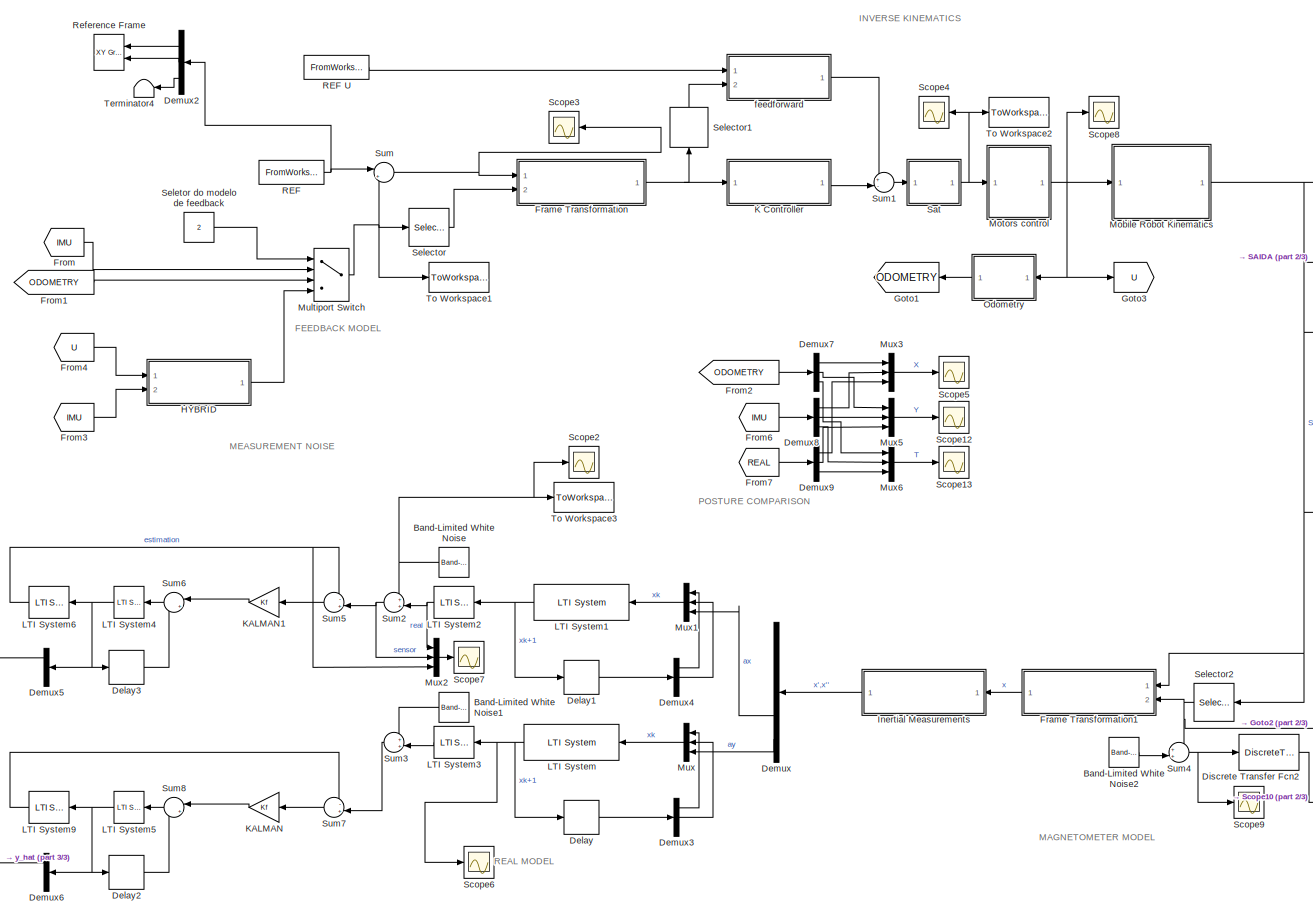
[diagram: root canvas - part 1/3, center side, full height]
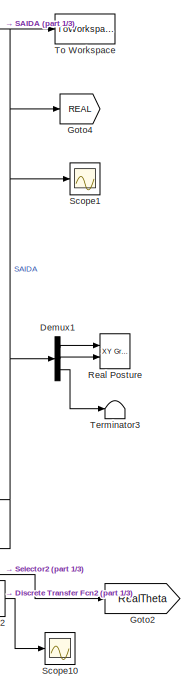
[diagram: root canvas - part 2/3, middle right region]
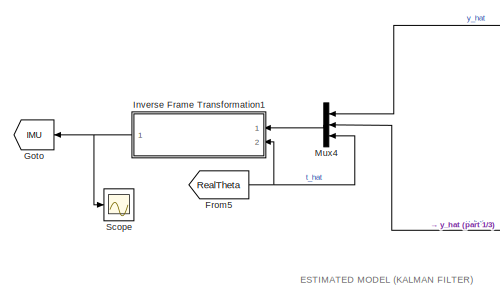
[diagram: root canvas - part 3/3, bottom left region]
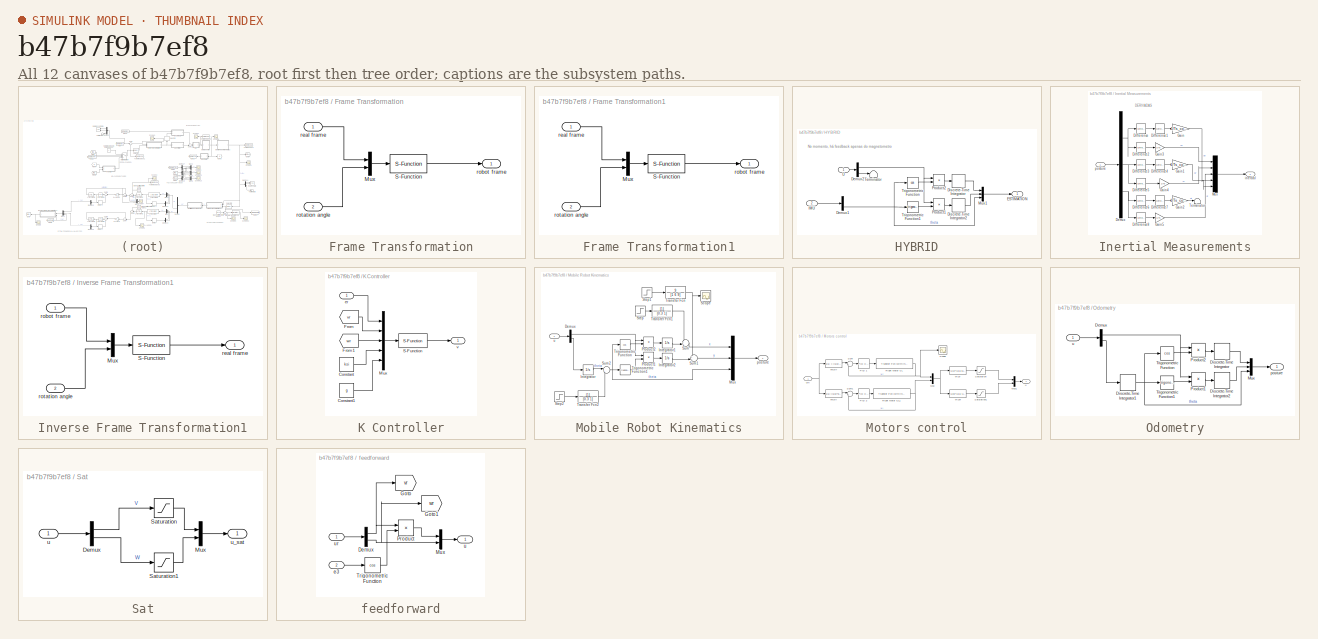
[diagram: thumbnail index - all 12 canvases of the model, root first then tree order]
MODEL slx_b47b7f9b7ef8
KIND model
CONFIG AbsTol = auto
CONFIG EnableMultiTasking = off
CONFIG FixedStep = 0.001
CONFIG MaxStep = auto
CONFIG MinStep = auto
CONFIG RelTol = 1e-3
CONFIG SampleTimeConstraint = Unconstrained
CONFIG Solver = VariableStepAuto
CONFIG SolverName = VariableStepAuto
CONFIG StartTime = 0.0
CONFIG StopTime = Tsim
BLOCK [Reference] Band-Limited White Noise  REF=simulink/Sources/Band-Limited
White Noise
  Ports = [0, 1]
  SourceBlock = simulink/Sources/Band-Limited\nWhite Noise
  SourceProductBaseCode = SL
  SourceProductName = Simulink
  SourceType = Band-Limited White Noise.
BLOCK [Reference] Band-Limited White Noise1  REF=simulink/Sources/Band-Limited
White Noise
  Ports = [0, 1]
  SourceBlock = simulink/Sources/Band-Limited\nWhite Noise
  SourceProductBaseCode = SL
  SourceProductName = Simulink
  SourceType = Band-Limited White Noise.
BLOCK [Reference] Band-Limited White Noise2  REF=simulink/Sources/Band-Limited
White Noise
  Ports = [0, 1]
  SourceBlock = simulink/Sources/Band-Limited\nWhite Noise
  SourceProductBaseCode = SL
  SourceProductName = Simulink
  SourceType = Band-Limited White Noise.
BLOCK [Delay] Delay
  DelayLength = 1
  InputPortMap = u0
  Ports = [1, 1]
BLOCK [Delay] Delay1
  DelayLength = 1
  InputPortMap = u0
  Ports = [1, 1]
BLOCK [Delay] Delay2
  DelayLength = 1
  InputPortMap = u0
  Ports = [1, 1]
BLOCK [Delay] Delay3
  DelayLength = 1
  InputPortMap = u0
  Ports = [1, 1]
BLOCK [Demux] Demux
  DisplayOption = bar
  Outputs = 5
  Ports = [1, 5]
BLOCK [Demux] Demux1
  DisplayOption = bar
  Outputs = 3
  Ports = [1, 3]
BLOCK [Demux] Demux2
  DisplayOption = bar
  Outputs = 3
  Ports = [1, 3]
BLOCK [Demux] Demux3
  DisplayOption = bar
  Outputs = 3
  Ports = [1, 3]
BLOCK [Demux] Demux4
  DisplayOption = bar
  Outputs = 3
  Ports = [1, 3]
BLOCK [Demux] Demux5
  DisplayOption = bar
  Outputs = 3
  Ports = [1, 3]
BLOCK [Demux] Demux6
  DisplayOption = bar
  Outputs = 3
  Ports = [1, 3]
BLOCK [Demux] Demux7
  DisplayOption = bar
  Outputs = 3
  Ports = [1, 3]
BLOCK [Demux] Demux8
  DisplayOption = bar
  Outputs = 3
  Ports = [1, 3]
BLOCK [Demux] Demux9
  DisplayOption = bar
  Outputs = 3
  Ports = [1, 3]
BLOCK [DiscreteTransferFcn] Discrete Transfer Fcn2
  Denominator = F_M.den{1}
  InputPortMap = u0
  Numerator = F_M.num{1}
  Ports = [1, 1]
BLOCK [SubSystem] Frame Transformation
  Ports = [2, 1]
  RequestExecContextInheritance = off
  Variant = off
BLOCK [Mux] Frame Transformation/Mux
  DisplayOption = bar
  Inputs = 2
  Ports = [2, 1]
BLOCK [S-Function] Frame Transformation/S-Function
  EnableBusSupport = off
  FunctionName = Real2Robot
  Parameters = Ts
  Ports = [1, 1]
  SFcnIsStateOwnerBlock = off
  SFunctionDeploymentMode = off
BLOCK [Inport] Frame Transformation/real frame
  IconDisplay = Port number
BLOCK [Outport] Frame Transformation/robot frame
  IconDisplay = Port number
BLOCK [Inport] Frame Transformation/rotation angle
  IconDisplay = Port number
  Port = 2
BLOCK [SubSystem] Frame Transformation1
  Ports = [2, 1]
  RequestExecContextInheritance = off
  Variant = off
BLOCK [Mux] Frame Transformation1/Mux
  DisplayOption = bar
  Inputs = 2
  Ports = [2, 1]
BLOCK [S-Function] Frame Transformation1/S-Function
  EnableBusSupport = off
  FunctionName = Real2Robot
  Parameters = Ts_compute
  Ports = [1, 1]
  SFcnIsStateOwnerBlock = off
  SFunctionDeploymentMode = off
BLOCK [Inport] Frame Transformation1/real frame
  IconDisplay = Port number
BLOCK [Outport] Frame Transformation1/robot frame
  IconDisplay = Port number
BLOCK [Inport] Frame Transformation1/rotation angle
  IconDisplay = Port number
  Port = 2
BLOCK [From] From
  GotoTag = IMU
BLOCK [From] From1
  GotoTag = ODOMETRY
BLOCK [From] From2
  GotoTag = ODOMETRY
BLOCK [From] From3
  GotoTag = IMU
BLOCK [From] From4
  GotoTag = U
BLOCK [From] From5
  GotoTag = RealTheta
BLOCK [From] From6
  GotoTag = IMU
BLOCK [From] From7
  GotoTag = REAL
BLOCK [Goto] Goto
  GotoTag = IMU
BLOCK [Goto] Goto1
  GotoTag = ODOMETRY
BLOCK [Goto] Goto2
  GotoTag = RealTheta
BLOCK [Goto] Goto3
  GotoTag = U
BLOCK [Goto] Goto4
  GotoTag = REAL
BLOCK [SubSystem] HYBRID
  Ports = [2, 1]
  RequestExecContextInheritance = off
  Variant = off
BLOCK [Demux] HYBRID/Demux1
  DisplayOption = bar
  Outputs = 3
  Ports = [1, 3]
BLOCK [Demux] HYBRID/Demux2
  DisplayOption = bar
  Outputs = 2
  Ports = [1, 2]
BLOCK [DiscreteIntegrator] HYBRID/Discrete-Time Integrator
  ICPrevOutput = DiscIntNeverNeededParam
  ICPrevScaledInput = DiscIntNeverNeededParam
  InitialConditionSetting = State (most efficient)
  Ports = [1, 1]
  SampleTime = Ts
BLOCK [DiscreteIntegrator] HYBRID/Discrete-Time Integrator2
  ICPrevOutput = DiscIntNeverNeededParam
  ICPrevScaledInput = DiscIntNeverNeededParam
  InitialConditionSetting = State (most efficient)
  Ports = [1, 1]
  SampleTime = Ts
BLOCK [Outport] HYBRID/ESTIMATION
  IconDisplay = Port number
BLOCK [Inport] HYBRID/IMU
  IconDisplay = Port number
  Port = 2
BLOCK [Mux] HYBRID/Mux1
  DisplayOption = bar
  Inputs = 3
  Ports = [3, 1]
BLOCK [Product] HYBRID/Product1
  InputSameDT = off
  OutDataTypeStr = Inherit: Inherit via internal rule
  Ports = [2, 1]
  RndMeth = Floor
  SaturateOnIntegerOverflow = off
BLOCK [Product] HYBRID/Product2
  InputSameDT = off
  OutDataTypeStr = Inherit: Inherit via internal rule
  Ports = [2, 1]
  RndMeth = Floor
  SaturateOnIntegerOverflow = off
BLOCK [Terminator] HYBRID/Terminator
BLOCK [Trigonometry] HYBRID/Trigonometric Function
  Operator = cos
  Ports = [1, 1]
BLOCK [Trigonometry] HYBRID/Trigonometric Function1
  Ports = [1, 1]
BLOCK [Inport] HYBRID/U
  IconDisplay = Port number
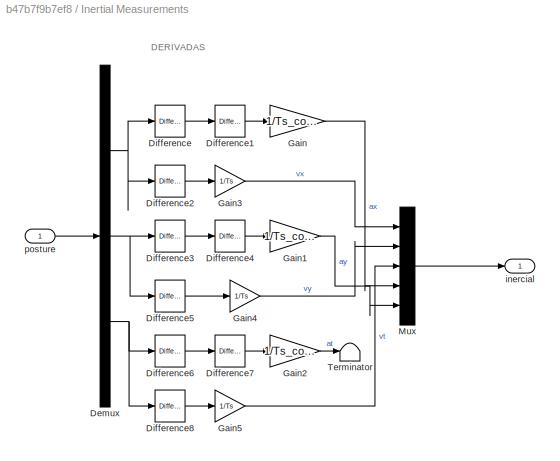
BLOCK [SubSystem] Inertial Measurements
  Ports = [1, 1]
  RequestExecContextInheritance = off
  Variant = off
BLOCK [Demux] Inertial Measurements/Demux
  DisplayOption = bar
  Outputs = 3
  Ports = [1, 3]
BLOCK [Reference] Inertial Measurements/Difference  REF=simulink/Discrete/Difference
  Ports = [1, 1]
  SourceBlock = simulink/Discrete/Difference
  SourceProductBaseCode = SL
  SourceProductName = Simulink
  SourceType = Difference
BLOCK [Reference] Inertial Measurements/Difference1  REF=simulink/Discrete/Difference
  Ports = [1, 1]
  SourceBlock = simulink/Discrete/Difference
  SourceProductBaseCode = SL
  SourceProductName = Simulink
  SourceType = Difference
BLOCK [Reference] Inertial Measurements/Difference2  REF=simulink/Discrete/Difference
  Ports = [1, 1]
  SourceBlock = simulink/Discrete/Difference
  SourceProductBaseCode = SL
  SourceProductName = Simulink
  SourceType = Difference
BLOCK [Reference] Inertial Measurements/Difference3  REF=simulink/Discrete/Difference
  Ports = [1, 1]
  SourceBlock = simulink/Discrete/Difference
  SourceProductBaseCode = SL
  SourceProductName = Simulink
  SourceType = Difference
BLOCK [Reference] Inertial Measurements/Difference4  REF=simulink/Discrete/Difference
  Ports = [1, 1]
  SourceBlock = simulink/Discrete/Difference
  SourceProductBaseCode = SL
  SourceProductName = Simulink
  SourceType = Difference
BLOCK [Reference] Inertial Measurements/Difference5  REF=simulink/Discrete/Difference
  Ports = [1, 1]
  SourceBlock = simulink/Discrete/Difference
  SourceProductBaseCode = SL
  SourceProductName = Simulink
  SourceType = Difference
BLOCK [Reference] Inertial Measurements/Difference6  REF=simulink/Discrete/Difference
  Ports = [1, 1]
  SourceBlock = simulink/Discrete/Difference
  SourceProductBaseCode = SL
  SourceProductName = Simulink
  SourceType = Difference
BLOCK [Reference] Inertial Measurements/Difference7  REF=simulink/Discrete/Difference
  Ports = [1, 1]
  SourceBlock = simulink/Discrete/Difference
  SourceProductBaseCode = SL
  SourceProductName = Simulink
  SourceType = Difference
BLOCK [Reference] Inertial Measurements/Difference8  REF=simulink/Discrete/Difference
  Ports = [1, 1]
  SourceBlock = simulink/Discrete/Difference
  SourceProductBaseCode = SL
  SourceProductName = Simulink
  SourceType = Difference
BLOCK [Gain] Inertial Measurements/Gain
  Gain = 1/Ts_compute^2
  OutDataTypeStr = Inherit: Inherit via internal rule
  ParamDataTypeStr = Inherit: Inherit via internal rule
  SaturateOnIntegerOverflow = off
BLOCK [Gain] Inertial Measurements/Gain1
  Gain = 1/Ts_compute^2
  OutDataTypeStr = Inherit: Inherit via internal rule
  ParamDataTypeStr = Inherit: Inherit via internal rule
  SaturateOnIntegerOverflow = off
BLOCK [Gain] Inertial Measurements/Gain2
  Gain = 1/Ts_compute^2
  OutDataTypeStr = Inherit: Inherit via internal rule
  ParamDataTypeStr = Inherit: Inherit via internal rule
  SaturateOnIntegerOverflow = off
BLOCK [Gain] Inertial Measurements/Gain3
  Gain = 1/Ts
  OutDataTypeStr = Inherit: Inherit via internal rule
  ParamDataTypeStr = Inherit: Inherit via internal rule
  SaturateOnIntegerOverflow = off
BLOCK [Gain] Inertial Measurements/Gain4
  Gain = 1/Ts
  OutDataTypeStr = Inherit: Inherit via internal rule
  ParamDataTypeStr = Inherit: Inherit via internal rule
  SaturateOnIntegerOverflow = off
BLOCK [Gain] Inertial Measurements/Gain5
  Gain = 1/Ts
  OutDataTypeStr = Inherit: Inherit via internal rule
  ParamDataTypeStr = Inherit: Inherit via internal rule
  SaturateOnIntegerOverflow = off
BLOCK [Mux] Inertial Measurements/Mux
  DisplayOption = bar
  Inputs = 5
  Ports = [5, 1]
BLOCK [Terminator] Inertial Measurements/Terminator
BLOCK [Outport] Inertial Measurements/inercial
  IconDisplay = Port number
BLOCK [Inport] Inertial Measurements/posture
  IconDisplay = Port number
BLOCK [SubSystem] Inverse Frame Transformation1
  Ports = [2, 1]
  RequestExecContextInheritance = off
  Variant = off
BLOCK [Mux] Inverse Frame Transformation1/Mux
  DisplayOption = bar
  Inputs = 2
  Ports = [2, 1]
BLOCK [S-Function] Inverse Frame Transformation1/S-Function
  EnableBusSupport = off
  FunctionName = Robot2Real
  Parameters = Ts
  Ports = [1, 1]
  SFcnIsStateOwnerBlock = off
  SFunctionDeploymentMode = off
BLOCK [Outport] Inverse Frame Transformation1/real frame
  IconDisplay = Port number
BLOCK [Inport] Inverse Frame Transformation1/robot frame
  IconDisplay = Port number
BLOCK [Inport] Inverse Frame Transformation1/rotation angle
  IconDisplay = Port number
  Port = 2
BLOCK [SubSystem] K Controller
  Ports = [1, 1]
  RequestExecContextInheritance = off
  Variant = off
BLOCK [Constant] K Controller/Constant
  Value = ksi
BLOCK [Constant] K Controller/Constant1
  Value = g
BLOCK [From] K Controller/From
  GotoTag = vr
  TagVisibility = global
BLOCK [From] K Controller/From1
  GotoTag = wr
  TagVisibility = global
BLOCK [Mux] K Controller/Mux
  DisplayOption = bar
  Inputs = 5
  Ports = [5, 1]
BLOCK [S-Function] K Controller/S-Function
  EnableBusSupport = off
  FunctionName = ControllerK
  Parameters = Ts
  Ports = [1, 1]
  SFcnIsStateOwnerBlock = off
  SFunctionDeploymentMode = off
BLOCK [Inport] K Controller/er
  IconDisplay = Port number
BLOCK [Outport] K Controller/v
  IconDisplay = Port number
BLOCK [Gain] KALMAN
  Gain = Kf
  Multiplication = Matrix(K*u)
  OutDataTypeStr = Inherit: Inherit via internal rule
  ParamDataTypeStr = Inherit: Inherit via internal rule
  SaturateOnIntegerOverflow = off
BLOCK [Gain] KALMAN1
  Gain = Kf
  Multiplication = Matrix(K*u)
  OutDataTypeStr = Inherit: Inherit via internal rule
  ParamDataTypeStr = Inherit: Inherit via internal rule
  SaturateOnIntegerOverflow = off
BLOCK [Reference] LTI System  REF=cstblocks/LTI System
  Ports = [1, 1]
  SourceBlock = cstblocks/LTI System
  SourceProductBaseCode = CT
  SourceProductName = Control System Toolbox
  SourceType = LTI Block
BLOCK [Reference] LTI System1  REF=cstblocks/LTI System
  Ports = [1, 1]
  SourceBlock = cstblocks/LTI System
  SourceProductBaseCode = CT
  SourceProductName = Control System Toolbox
  SourceType = LTI Block
BLOCK [Reference] LTI System2  REF=cstblocks/LTI System
  Ports = [1, 1]
  SourceBlock = cstblocks/LTI System
  SourceProductBaseCode = CT
  SourceProductName = Control System Toolbox
  SourceType = LTI Block
BLOCK [Reference] LTI System3  REF=cstblocks/LTI System
  Ports = [1, 1]
  SourceBlock = cstblocks/LTI System
  SourceProductBaseCode = CT
  SourceProductName = Control System Toolbox
  SourceType = LTI Block
BLOCK [Reference] LTI System4  REF=cstblocks/LTI System
  Ports = [1, 1]
  SourceBlock = cstblocks/LTI System
  SourceProductBaseCode = CT
  SourceProductName = Control System Toolbox
  SourceType = LTI Block
BLOCK [Reference] LTI System5  REF=cstblocks/LTI System
  Ports = [1, 1]
  SourceBlock = cstblocks/LTI System
  SourceProductBaseCode = CT
  SourceProductName = Control System Toolbox
  SourceType = LTI Block
BLOCK [Reference] LTI System6  REF=cstblocks/LTI System
  Ports = [1, 1]
  SourceBlock = cstblocks/LTI System
  SourceProductBaseCode = CT
  SourceProductName = Control System Toolbox
  SourceType = LTI Block
BLOCK [Reference] LTI System9  REF=cstblocks/LTI System
  Ports = [1, 1]
  SourceBlock = cstblocks/LTI System
  SourceProductBaseCode = CT
  SourceProductName = Control System Toolbox
  SourceType = LTI Block
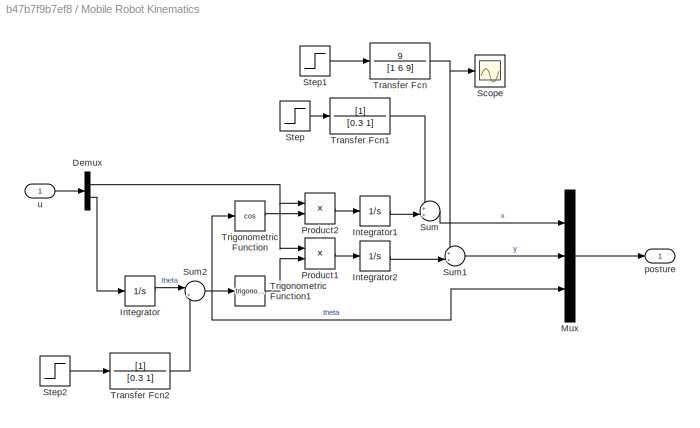
BLOCK [SubSystem] Mobile Robot Kinematics
  Ports = [1, 1]
  RequestExecContextInheritance = off
  Variant = off
BLOCK [Demux] Mobile Robot Kinematics/Demux
  DisplayOption = bar
  Outputs = 2
  Ports = [1, 2]
BLOCK [Integrator] Mobile Robot Kinematics/Integrator
  Ports = [1, 1]
BLOCK [Integrator] Mobile Robot Kinematics/Integrator1
  Ports = [1, 1]
BLOCK [Integrator] Mobile Robot Kinematics/Integrator2
  Ports = [1, 1]
BLOCK [Mux] Mobile Robot Kinematics/Mux
  DisplayOption = bar
  Inputs = 3
  Ports = [3, 1]
BLOCK [Product] Mobile Robot Kinematics/Product1
  InputSameDT = off
  OutDataTypeStr = Inherit: Inherit via internal rule
  Ports = [2, 1]
  RndMeth = Floor
  SaturateOnIntegerOverflow = off
BLOCK [Product] Mobile Robot Kinematics/Product2
  InputSameDT = off
  OutDataTypeStr = Inherit: Inherit via internal rule
  Ports = [2, 1]
  RndMeth = Floor
  SaturateOnIntegerOverflow = off
BLOCK [Scope] Mobile Robot Kinematics/Scope
  NumInputPorts = 1
  Ports = [1]
  ScopeSpecificationString = Simulink.scopes.TimeScopeBlockCfg('CurrentConfiguration', extmgr.ConfigurationSet(extmgr.Configuration('Core','General UI',true),extmgr.Configuration('Core','Source UI',true),extmgr.Configuration('Sources','WiredSimulink',true,'DataLoggingVariableName','ScopeData7'),extmgr.Configuration('Visuals','Time Domain',true,'SerializedDisplays',{struct('MinYLimReal','-0.45','MaxYLimReal','0.05','YLabelReal...<+1353ch>
BLOCK [Step] Mobile Robot Kinematics/Step
  After = 0
  SampleTime = 0
  Time = 20
BLOCK [Step] Mobile Robot Kinematics/Step1
  After = -0.4
  SampleTime = 0
  Time = 5
BLOCK [Step] Mobile Robot Kinematics/Step2
  After = 0
  SampleTime = 0
  Time = 5
BLOCK [Sum] Mobile Robot Kinematics/Sum
  IconShape = round
  InputSameDT = off
  Inputs = ++|
  OutDataTypeStr = Inherit: Inherit via internal rule
  Ports = [2, 1]
  SaturateOnIntegerOverflow = off
BLOCK [Sum] Mobile Robot Kinematics/Sum1
  IconShape = round
  InputSameDT = off
  Inputs = ++|
  OutDataTypeStr = Inherit: Inherit via internal rule
  Ports = [2, 1]
  SaturateOnIntegerOverflow = off
BLOCK [Sum] Mobile Robot Kinematics/Sum2
  IconShape = round
  InputSameDT = off
  Inputs = |++
  OutDataTypeStr = Inherit: Inherit via internal rule
  Ports = [2, 1]
  SaturateOnIntegerOverflow = off
BLOCK [TransferFcn] Mobile Robot Kinematics/Transfer Fcn
  Denominator = [1 6 9]
  Numerator = 9
BLOCK [TransferFcn] Mobile Robot Kinematics/Transfer Fcn1
  Denominator = [0.3 1]
BLOCK [TransferFcn] Mobile Robot Kinematics/Transfer Fcn2
  Denominator = [0.3 1]
BLOCK [Trigonometry] Mobile Robot Kinematics/Trigonometric Function
  Operator = cos
  Ports = [1, 1]
BLOCK [Trigonometry] Mobile Robot Kinematics/Trigonometric Function1
  Ports = [1, 1]
BLOCK [Outport] Mobile Robot Kinematics/posture
  IconDisplay = Port number
BLOCK [Inport] Mobile Robot Kinematics/u
  IconDisplay = Port number
BLOCK [SubSystem] Motors control
  Ports = [1, 1]
  RequestExecContextInheritance = off
  Variant = off
BLOCK [Mux] Motors control/Mux
  DisplayOption = bar
  Inputs = 2
  Ports = [2, 1]
BLOCK [Mux] Motors control/Mux1
  DisplayOption = bar
  Inputs = 2
  Ports = [2, 1]
BLOCK [Reference] Motors control/PID 1  REF=simulink/Continuous/PID Controller
  Ports = [1, 1]
  SourceBlock = simulink/Continuous/PID Controller
  SourceProductBaseCode = SL
  SourceProductName = Simulink
  SourceType = PID 1dof
BLOCK [Reference] Motors control/PID 2  REF=simulink/Continuous/PID Controller
  Ports = [1, 1]
  SourceBlock = simulink/Continuous/PID Controller
  SourceProductBaseCode = SL
  SourceProductName = Simulink
  SourceType = PID 1dof
BLOCK [Reference] Motors control/Right Motor CL  REF=simulink_extras/Additional
Linear/Transfer Fcn
(with initial outputs)
  Ports = [1, 1]
  SourceBlock = simulink_extras/Additional\nLinear/Transfer Fcn\n(with initial outputs)
  SourceProductBaseCode = SL
  SourceProductName = Simulink
  SourceType = Transfer Function with Initial Outputs
BLOCK [Reference] Motors control/Right Motor CL1  REF=simulink_extras/Additional
Linear/Transfer Fcn
(with initial outputs)
  Ports = [1, 1]
  SourceBlock = simulink_extras/Additional\nLinear/Transfer Fcn\n(with initial outputs)
  SourceProductBaseCode = SL
  SourceProductName = Simulink
  SourceType = Transfer Function with Initial Outputs
BLOCK [Saturate] Motors control/Saturation
  InputPortMap = u0
  LowerLimit = -1
  Ports = [1, 1]
  UpperLimit = 1
BLOCK [Saturate] Motors control/Saturation1
  InputPortMap = u0
  LowerLimit = -1
  Ports = [1, 1]
  UpperLimit = 1
BLOCK [Scope] Motors control/Scope
  NumInputPorts = 1
  Ports = [1]
  ScopeSpecificationString = Simulink.scopes.TimeScopeBlockCfg('CurrentConfiguration', extmgr.ConfigurationSet(extmgr.Configuration('Core','General UI',true),extmgr.Configuration('Core','Source UI',true),extmgr.Configuration('Sources','WiredSimulink',true,'DataLoggingVariableName','ScopeData5','DataLoggingSaveFormat','StructureWithTime','DataLoggingLimitDataPoints',true,'DataLoggingDecimation','1','DataLoggingDecimateData',tr...<+1674ch>
BLOCK [Sum] Motors control/Sum
  IconShape = round
  InputSameDT = off
  Inputs = |+-
  OutDataTypeStr = Inherit: Inherit via internal rule
  Ports = [2, 1]
  SaturateOnIntegerOverflow = off
BLOCK [Sum] Motors control/Sum1
  IconShape = round
  InputSameDT = off
  Inputs = |+-
  OutDataTypeStr = Inherit: Inherit via internal rule
  Ports = [2, 1]
  SaturateOnIntegerOverflow = off
BLOCK [Outport] Motors control/u
  IconDisplay = Port number
BLOCK [Inport] Motors control/uin
  IconDisplay = Port number
BLOCK [Fcn] Motors control/vrl2v
  Expr = (1/2)*(u(1)+u(2))
BLOCK [Fcn] Motors control/vrl2w
  Expr = (1/b)*(u(1)-u(2))
BLOCK [Fcn] Motors control/vw2Vl
  Expr = u(1)-((u(2)*b)/2)
BLOCK [Fcn] Motors control/vw2Vr
  Expr = u(1) + ((u(2)*b)/2)
BLOCK [MultiPortSwitch] Multiport Switch
  InputSameDT = off
  Ports = [4, 1]
  SaturateOnIntegerOverflow = off
BLOCK [Mux] Mux
  DisplayOption = bar
  Inputs = 3
  Ports = [3, 1]
BLOCK [Mux] Mux1
  DisplayOption = bar
  Inputs = 3
  Ports = [3, 1]
BLOCK [Mux] Mux2
  DisplayOption = bar
  Inputs = 3
  Ports = [3, 1]
BLOCK [Mux] Mux3
  DisplayOption = bar
  Inputs = 3
  Ports = [3, 1]
BLOCK [Mux] Mux4
  DisplayOption = bar
  Inputs = 3
  Ports = [3, 1]
BLOCK [Mux] Mux5
  DisplayOption = bar
  Inputs = 3
  Ports = [3, 1]
BLOCK [Mux] Mux6
  DisplayOption = bar
  Inputs = 3
  Ports = [3, 1]
BLOCK [SubSystem] Odometry
  Ports = [1, 1]
  RequestExecContextInheritance = off
  Variant = off
BLOCK [Demux] Odometry/Demux
  DisplayOption = bar
  Outputs = 2
  Ports = [1, 2]
BLOCK [DiscreteIntegrator] Odometry/Discrete-Time Integrator
  ICPrevOutput = DiscIntNeverNeededParam
  ICPrevScaledInput = DiscIntNeverNeededParam
  InitialConditionSetting = State (most efficient)
  Ports = [1, 1]
  SampleTime = Ts
BLOCK [DiscreteIntegrator] Odometry/Discrete-Time Integrator1
  ICPrevOutput = DiscIntNeverNeededParam
  ICPrevScaledInput = DiscIntNeverNeededParam
  InitialConditionSetting = State (most efficient)
  Ports = [1, 1]
  SampleTime = Ts
BLOCK [DiscreteIntegrator] Odometry/Discrete-Time Integrator2
  ICPrevOutput = DiscIntNeverNeededParam
  ICPrevScaledInput = DiscIntNeverNeededParam
  InitialConditionSetting = State (most efficient)
  Ports = [1, 1]
  SampleTime = Ts
BLOCK [Mux] Odometry/Mux
  DisplayOption = bar
  Inputs = 3
  Ports = [3, 1]
BLOCK [Product] Odometry/Product1
  InputSameDT = off
  OutDataTypeStr = Inherit: Inherit via internal rule
  Ports = [2, 1]
  RndMeth = Floor
  SaturateOnIntegerOverflow = off
BLOCK [Product] Odometry/Product2
  InputSameDT = off
  OutDataTypeStr = Inherit: Inherit via internal rule
  Ports = [2, 1]
  RndMeth = Floor
  SaturateOnIntegerOverflow = off
BLOCK [Trigonometry] Odometry/Trigonometric Function
  Operator = cos
  Ports = [1, 1]
BLOCK [Trigonometry] Odometry/Trigonometric Function1
  Ports = [1, 1]
BLOCK [Outport] Odometry/posture
  IconDisplay = Port number
BLOCK [Inport] Odometry/u
  IconDisplay = Port number
BLOCK [FromWorkspace] REF
  OutputAfterFinalValue = Holding final value
  SampleTime = Ts
  VariableName = XrSIM
  ZeroCross = on
BLOCK [FromWorkspace] REF U
  OutputAfterFinalValue = Holding final value
  SampleTime = Ts
  VariableName = UrSIM
  ZeroCross = on
BLOCK [Reference] Real Posture  REF=simulink/Sinks/XY Graph
  Ports = [2]
  SourceBlock = simulink/Sinks/XY Graph
  SourceProductBaseCode = SL
  SourceProductName = Simulink
  SourceType = XY scope.
BLOCK [Reference] Reference Frame  REF=simulink/Sinks/XY Graph
  Commented = on
  Ports = [2]
  SourceBlock = simulink/Sinks/XY Graph
  SourceProductBaseCode = SL
  SourceProductName = Simulink
  SourceType = XY scope.
BLOCK [SubSystem] Sat
  Ports = [1, 1]
  RequestExecContextInheritance = off
  Variant = off
BLOCK [Demux] Sat/Demux
  DisplayOption = bar
  Outputs = 2
  Ports = [1, 2]
BLOCK [Mux] Sat/Mux
  DisplayOption = bar
  Inputs = 2
  Ports = [2, 1]
BLOCK [Saturate] Sat/Saturation
  InputPortMap = u0
  LowerLimit = 0
  Ports = [1, 1]
BLOCK [Saturate] Sat/Saturation1
  InputPortMap = u0
  Ports = [1, 1]
BLOCK [Inport] Sat/u
  IconDisplay = Port number
BLOCK [Outport] Sat/u_sat
  IconDisplay = Port number
BLOCK [Scope] Scope
  NumInputPorts = 1
  Ports = [1]
  ScopeSpecificationString = Simulink.scopes.TimeScopeBlockCfg('CurrentConfiguration', extmgr.ConfigurationSet(extmgr.Configuration('Core','General UI',true),extmgr.Configuration('Core','Source UI',true),extmgr.Configuration('Sources','WiredSimulink',true,'DataLoggingVariableName','ScopeData1'),extmgr.Configuration('Visuals','Time Domain',true,'SerializedDisplays',{struct('MinYLimReal','-0.77458','MaxYLimReal','3.05286','YLab...<+1488ch>
BLOCK [Scope] Scope1
  NumInputPorts = 1
  Ports = [1]
  ScopeSpecificationString = Simulink.scopes.TimeScopeBlockCfg('CurrentConfiguration', extmgr.ConfigurationSet(extmgr.Configuration('Core','General UI',true),extmgr.Configuration('Core','Source UI',true),extmgr.Configuration('Sources','WiredSimulink',true,'DataLoggingVariableName','ScopeData2'),extmgr.Configuration('Visuals','Time Domain',true,'SerializedDisplays',{struct('MinYLimReal','-0.79994','MaxYLimReal','3.056','YLabel...<+1407ch>
BLOCK [Scope] Scope10
  NumInputPorts = 1
  Ports = [1]
  ScopeSpecificationString = Simulink.scopes.TimeScopeBlockCfg('CurrentConfiguration', extmgr.ConfigurationSet(extmgr.Configuration('Core','General UI',true),extmgr.Configuration('Core','Source UI',true),extmgr.Configuration('Sources','WiredSimulink',true,'DataLoggingVariableName','ScopeData10'),extmgr.Configuration('Visuals','Time Domain',true,'SerializedDisplays',{struct('MinYLimReal','-0.67536','MaxYLimReal','2.28427','YLa...<+1455ch>
BLOCK [Scope] Scope12
  NumInputPorts = 1
  Ports = [1]
  ScopeSpecificationString = Simulink.scopes.TimeScopeBlockCfg('CurrentConfiguration', extmgr.ConfigurationSet(extmgr.Configuration('Core','General UI',true),extmgr.Configuration('Core','Source UI',true),extmgr.Configuration('Sources','WiredSimulink',true,'DataLoggingVariableName','ScopeData6'),extmgr.Configuration('Visuals','Time Domain',true,'SerializedDisplays',{struct('MinYLimReal','-0.66696','MaxYLimReal','1.77172','YLab...<+1474ch>
BLOCK [Scope] Scope13
  NumInputPorts = 1
  Ports = [1]
  ScopeSpecificationString = Simulink.scopes.TimeScopeBlockCfg('CurrentConfiguration', extmgr.ConfigurationSet(extmgr.Configuration('Core','General UI',true),extmgr.Configuration('Core','Source UI',true),extmgr.Configuration('Sources','WiredSimulink',true,'DataLoggingVariableName','ScopeData7'),extmgr.Configuration('Visuals','Time Domain',true,'SerializedDisplays',{struct('MinYLimReal','-0.71444','MaxYLimReal','2.28648','YLab...<+1430ch>
BLOCK [Scope] Scope2
  NumInputPorts = 1
  Ports = [1]
  ScopeSpecificationString = Simulink.scopes.TimeScopeBlockCfg('CurrentConfiguration', extmgr.ConfigurationSet(extmgr.Configuration('Core','General UI',true),extmgr.Configuration('Core','Source UI',true),extmgr.Configuration('Sources','WiredSimulink',true,'DataLoggingVariableName','ScopeData1'),extmgr.Configuration('Visuals','Time Domain',true,'SerializedDisplays',{struct('MinYLimReal','-0.20343','MaxYLimReal','0.21858','YLab...<+1408ch>
BLOCK [Scope] Scope3
  NumInputPorts = 1
  Ports = [1]
  ScopeSpecificationString = Simulink.scopes.TimeScopeBlockCfg('CurrentConfiguration', extmgr.ConfigurationSet(extmgr.Configuration('Core','General UI',true),extmgr.Configuration('Core','Source UI',true),extmgr.Configuration('Sources','WiredSimulink',true,'DataLoggingVariableName','ScopeData3'),extmgr.Configuration('Visuals','Time Domain',true,'SerializedDisplays',{struct('MinYLimReal','-1.90918','MaxYLimReal','1.92999','YLab...<+1426ch>
BLOCK [Scope] Scope4
  NumInputPorts = 1
  Ports = [1]
  ScopeSpecificationString = Simulink.scopes.TimeScopeBlockCfg('CurrentConfiguration', extmgr.ConfigurationSet(extmgr.Configuration('Core','General UI',true),extmgr.Configuration('Core','Source UI',true),extmgr.Configuration('Sources','WiredSimulink',true,'DataLoggingVariableName','ScopeData1'),extmgr.Configuration('Visuals','Time Domain',true,'SerializedDisplays',{struct('MinYLimReal','-0.625','MaxYLimReal','0.625','YLabelRe...<+1389ch>
BLOCK [Scope] Scope5
  NumInputPorts = 1
  Ports = [1]
  ScopeSpecificationString = Simulink.scopes.TimeScopeBlockCfg('CurrentConfiguration', extmgr.ConfigurationSet(extmgr.Configuration('Core','General UI',true),extmgr.Configuration('Core','Source UI',true),extmgr.Configuration('Sources','WiredSimulink',true,'DataLoggingVariableName','ScopeData2'),extmgr.Configuration('Visuals','Time Domain',true,'SerializedDisplays',{struct('MinYLimReal','-0.40803','MaxYLimReal','3.67226','YLab...<+1430ch>
BLOCK [Scope] Scope6
  NumInputPorts = 1
  Ports = [1]
  ScopeSpecificationString = Simulink.scopes.TimeScopeBlockCfg('CurrentConfiguration', extmgr.ConfigurationSet(extmgr.Configuration('Core','General UI',true),extmgr.Configuration('Core','Source UI',true),extmgr.Configuration('Sources','WiredSimulink',true,'DataLoggingVariableName','ScopeData1'),extmgr.Configuration('Visuals','Time Domain',true,'SerializedDisplays',{struct('MinYLimReal','-4.22368','MaxYLimReal','3.07909','YLab...<+1472ch>
BLOCK [Scope] Scope7
  NumInputPorts = 1
  Ports = [1]
  ScopeSpecificationString = Simulink.scopes.TimeScopeBlockCfg('CurrentConfiguration', extmgr.ConfigurationSet(extmgr.Configuration('Core','General UI',true),extmgr.Configuration('Core','Source UI',true),extmgr.Configuration('Sources','WiredSimulink',true,'DataLoggingVariableName','ScopeData1'),extmgr.Configuration('Visuals','Time Domain',true,'SerializedDisplays',{struct('MinYLimReal','-2.09819','MaxYLimReal','3.14626','YLab...<+1435ch>
BLOCK [Scope] Scope8
  NumInputPorts = 1
  Ports = [1]
  ScopeSpecificationString = Simulink.scopes.TimeScopeBlockCfg('CurrentConfiguration', extmgr.ConfigurationSet(extmgr.Configuration('Core','General UI',true),extmgr.Configuration('Core','Source UI',true),extmgr.Configuration('Sources','WiredSimulink',true,'DataLoggingVariableName','ScopeData8'),extmgr.Configuration('Visuals','Time Domain',true,'SerializedDisplays',{struct('MinYLimReal','-0.67357','MaxYLimReal','0.71368','YLab...<+1394ch>
BLOCK [Scope] Scope9
  NumInputPorts = 1
  Ports = [1]
  ScopeSpecificationString = Simulink.scopes.TimeScopeBlockCfg('CurrentConfiguration', extmgr.ConfigurationSet(extmgr.Configuration('Core','General UI',true),extmgr.Configuration('Core','Source UI',true),extmgr.Configuration('Sources','WiredSimulink',true,'DataLoggingVariableName','ScopeData9'),extmgr.Configuration('Visuals','Time Domain',true,'SerializedDisplays',{struct('MinYLimReal','-1.19136','MaxYLimReal','2.78399','YLab...<+1436ch>
BLOCK [Selector] Selector
  IndexOptions = Index vector (dialog)
  Indices = 3
  InputPortWidth = 3
  OutputSizes = 1
  Ports = [1, 1]
BLOCK [Selector] Selector1
  IndexOptions = Index vector (dialog)
  Indices = 3
  InputPortWidth = 3
  OutputSizes = 1
  Ports = [1, 1]
BLOCK [Selector] Selector2
  IndexOptions = Index vector (dialog)
  Indices = 3
  InputPortWidth = 3
  OutputSizes = 1
  Ports = [1, 1]
BLOCK [Constant] Seletor do modelo de feedback
  Value = 2
BLOCK [Sum] Sum
  IconShape = round
  InputSameDT = off
  Inputs = |+-
  OutDataTypeStr = Inherit: Inherit via internal rule
  Ports = [2, 1]
  SaturateOnIntegerOverflow = off
BLOCK [Sum] Sum1
  IconShape = round
  InputSameDT = off
  Inputs = +-|
  OutDataTypeStr = Inherit: Inherit via internal rule
  Ports = [2, 1]
  SaturateOnIntegerOverflow = off
BLOCK [Sum] Sum2
  IconShape = round
  InputSameDT = off
  Inputs = ++|
  OutDataTypeStr = Inherit: Inherit via internal rule
  Ports = [2, 1]
  SaturateOnIntegerOverflow = off
BLOCK [Sum] Sum3
  IconShape = round
  InputSameDT = off
  Inputs = ++|
  OutDataTypeStr = Inherit: Inherit via internal rule
  Ports = [2, 1]
  SaturateOnIntegerOverflow = off
BLOCK [Sum] Sum4
  IconShape = round
  InputSameDT = off
  Inputs = ++|
  OutDataTypeStr = Inherit: Inherit via internal rule
  Ports = [2, 1]
  SaturateOnIntegerOverflow = off
BLOCK [Sum] Sum5
  IconShape = round
  InputSameDT = off
  Inputs = -+|
  OutDataTypeStr = Inherit: Inherit via internal rule
  Ports = [2, 1]
  SaturateOnIntegerOverflow = off
BLOCK [Sum] Sum6
  IconShape = round
  InputSameDT = off
  Inputs = |++
  OutDataTypeStr = Inherit: Inherit via internal rule
  Ports = [2, 1]
  SaturateOnIntegerOverflow = off
BLOCK [Sum] Sum7
  IconShape = round
  InputSameDT = off
  Inputs = -+|
  OutDataTypeStr = Inherit: Inherit via internal rule
  Ports = [2, 1]
  SaturateOnIntegerOverflow = off
BLOCK [Sum] Sum8
  IconShape = round
  InputSameDT = off
  Inputs = |++
  OutDataTypeStr = Inherit: Inherit via internal rule
  Ports = [2, 1]
  SaturateOnIntegerOverflow = off
BLOCK [Terminator] Terminator3
BLOCK [Terminator] Terminator4
BLOCK [ToWorkspace] To Workspace
  FixptAsFi = on
  MaxDataPoints = inf
  Ports = [1]
  SampleTime = -1
  Save2DSignal = 3-D array (concatenate along third dimension)
  SaveFormat = Timeseries
  VariableName = posture
BLOCK [ToWorkspace] To Workspace1
  FixptAsFi = on
  MaxDataPoints = inf
  Ports = [1]
  SampleTime = -1
  Save2DSignal = 3-D array (concatenate along third dimension)
  SaveFormat = Timeseries
  VariableName = robot
BLOCK [ToWorkspace] To Workspace2
  FixptAsFi = on
  MaxDataPoints = inf
  Ports = [1]
  SampleTime = -1
  Save2DSignal = 3-D array (concatenate along third dimension)
  SaveFormat = Timeseries
  VariableName = control
BLOCK [ToWorkspace] To Workspace3
  FixptAsFi = on
  MaxDataPoints = inf
  Ports = [1]
  SampleTime = -1
  Save2DSignal = 3-D array (concatenate along third dimension)
  SaveFormat = Timeseries
  VariableName = noise
BLOCK [SubSystem] feedforward
  Ports = [2, 1]
  RequestExecContextInheritance = off
  Variant = off
BLOCK [Demux] feedforward/Demux
  DisplayOption = bar
  Outputs = 2
  Ports = [1, 2]
BLOCK [Goto] feedforward/Goto
  GotoTag = vr
  TagVisibility = global
BLOCK [Goto] feedforward/Goto1
  GotoTag = wr
  TagVisibility = global
BLOCK [Mux] feedforward/Mux
  DisplayOption = bar
  Inputs = 2
  Ports = [2, 1]
BLOCK [Product] feedforward/Product
  InputSameDT = off
  OutDataTypeStr = Inherit: Inherit via internal rule
  Ports = [2, 1]
  RndMeth = Floor
  SaturateOnIntegerOverflow = off
BLOCK [Trigonometry] feedforward/Trigonometric Function
  Operator = cos
  Ports = [1, 1]
BLOCK [Inport] feedforward/e3
  IconDisplay = Port number
  Port = 2
BLOCK [Outport] feedforward/u
  IconDisplay = Port number
BLOCK [Inport] feedforward/ur
  IconDisplay = Port number
ANNOTATION (root): POSTURE COMPARISON
ANNOTATION (root): MEASUREMENT NOISE
ANNOTATION (root): ESTIMATED MODEL (KALMAN FILTER)
ANNOTATION (root): FEEDBACK MODEL
ANNOTATION (root): INVERSE KINEMATICS
ANNOTATION (root): MAGNETOMETER MODEL
ANNOTATION (root): REAL MODEL
ANNOTATION HYBRID: No momento, há feedback apenas do magnetometro
ANNOTATION Inertial Measurements: DERIVADAS
LINE Band-Limited White Noise1:1 -> Sum3:1
LINE Band-Limited White Noise2:1 -> Sum4:2
NET Band-Limited White Noise:1 -> Scope2:1, Sum2:1, To Workspace3:1
LINE Delay1:1 -> Demux4:1
LINE Delay2:1 -> Sum8:2
LINE Delay3:1 -> Sum6:2
LINE Delay:1 -> Demux3:1
LINE Demux1:1 -> Real Posture:1
LINE Demux1:2 -> Real Posture:2
LINE Demux1:3 -> Terminator3:1
LINE Demux2:1 -> Reference Frame:1
LINE Demux2:2 -> Reference Frame:2
LINE Demux2:3 -> Terminator4:1
LINE Demux3:1 -> Mux:1
LINE Demux3:2 -> Mux:2
LINE Demux4:1 -> Mux1:1
LINE Demux4:2 -> Mux1:2
LINE Demux5:1 -> Mux4:1
LINE Demux6:1 -> Mux4:2
LINE Demux7:1 -> Mux3:1
LINE Demux7:2 -> Mux5:1
LINE Demux7:3 -> Mux6:1
LINE Demux8:1 -> Mux3:2
LINE Demux8:2 -> Mux5:2
LINE Demux8:3 -> Mux6:2
LINE Demux9:1 -> Mux3:3
LINE Demux9:2 -> Mux5:3
LINE Demux9:3 -> Mux6:3
LINE Demux:4 -> Mux1:3
LINE Demux:5 -> Mux:3
LINE Discrete Transfer Fcn2:1 -> Scope10:1
LINE Frame Transformation/Mux:1 -> Frame Transformation/S-Function:1
LINE Frame Transformation/S-Function:1 -> Frame Transformation/robot frame:1
LINE Frame Transformation/real frame:1 -> Frame Transformation/Mux:1
LINE Frame Transformation/rotation angle:1 -> Frame Transformation/Mux:2
LINE Frame Transformation1/Mux:1 -> Frame Transformation1/S-Function:1
LINE Frame Transformation1/S-Function:1 -> Frame Transformation1/robot frame:1
LINE Frame Transformation1/real frame:1 -> Frame Transformation1/Mux:1
LINE Frame Transformation1/rotation angle:1 -> Frame Transformation1/Mux:2
LINE Frame Transformation1:1 -> Inertial Measurements:1
NET Frame Transformation:1 -> K Controller:1, Selector1:1
LINE From1:1 -> Multiport Switch:3
LINE From2:1 -> Demux7:1
LINE From3:1 -> HYBRID:2
LINE From4:1 -> HYBRID:1
NET From5:1 -> Inverse Frame Transformation1:2, Mux4:3
LINE From6:1 -> Demux8:1
LINE From7:1 -> Demux9:1
LINE From:1 -> Multiport Switch:2
NET HYBRID/Demux1:3 -> HYBRID/Mux1:3, HYBRID/Trigonometric Function1:1, HYBRID/Trigonometric Function:1
NET HYBRID/Demux2:1 -> HYBRID/Product1:1, HYBRID/Product2:1
LINE HYBRID/Demux2:2 -> HYBRID/Terminator:1
LINE HYBRID/Discrete-Time Integrator2:1 -> HYBRID/Mux1:2
LINE HYBRID/Discrete-Time Integrator:1 -> HYBRID/Mux1:1
LINE HYBRID/IMU:1 -> HYBRID/Demux1:1
LINE HYBRID/Mux1:1 -> HYBRID/ESTIMATION:1
LINE HYBRID/Product1:1 -> HYBRID/Discrete-Time Integrator2:1
LINE HYBRID/Product2:1 -> HYBRID/Discrete-Time Integrator:1
LINE HYBRID/Trigonometric Function1:1 -> HYBRID/Product1:2
LINE HYBRID/Trigonometric Function:1 -> HYBRID/Product2:2
LINE HYBRID/U:1 -> HYBRID/Demux2:1
LINE HYBRID:1 -> Multiport Switch:4
NET Inertial Measurements/Demux:1 -> Inertial Measurements/Difference2:1, Inertial Measurements/Difference:1
NET Inertial Measurements/Demux:2 -> Inertial Measurements/Difference3:1, Inertial Measurements/Difference5:1
NET Inertial Measurements/Demux:3 -> Inertial Measurements/Difference6:1, Inertial Measurements/Difference8:1
LINE Inertial Measurements/Difference1:1 -> Inertial Measurements/Gain:1
LINE Inertial Measurements/Difference2:1 -> Inertial Measurements/Gain3:1
LINE Inertial Measurements/Difference3:1 -> Inertial Measurements/Difference4:1
LINE Inertial Measurements/Difference4:1 -> Inertial Measurements/Gain1:1
LINE Inertial Measurements/Difference5:1 -> Inertial Measurements/Gain4:1
LINE Inertial Measurements/Difference6:1 -> Inertial Measurements/Difference7:1
LINE Inertial Measurements/Difference7:1 -> Inertial Measurements/Gain2:1
LINE Inertial Measurements/Difference8:1 -> Inertial Measurements/Gain5:1
LINE Inertial Measurements/Difference:1 -> Inertial Measurements/Difference1:1
LINE Inertial Measurements/Gain1:1 -> Inertial Measurements/Mux:5
LINE Inertial Measurements/Gain2:1 -> Inertial Measurements/Terminator:1
LINE Inertial Measurements/Gain3:1 -> Inertial Measurements/Mux:1
LINE Inertial Measurements/Gain4:1 -> Inertial Measurements/Mux:2
LINE Inertial Measurements/Gain5:1 -> Inertial Measurements/Mux:3
LINE Inertial Measurements/Gain:1 -> Inertial Measurements/Mux:4
LINE Inertial Measurements/Mux:1 -> Inertial Measurements/inercial:1
LINE Inertial Measurements/posture:1 -> Inertial Measurements/Demux:1
LINE Inertial Measurements:1 -> Demux:1
LINE Inverse Frame Transformation1/Mux:1 -> Inverse Frame Transformation1/S-Function:1
LINE Inverse Frame Transformation1/S-Function:1 -> Inverse Frame Transformation1/real frame:1
LINE Inverse Frame Transformation1/robot frame:1 -> Inverse Frame Transformation1/Mux:1
LINE Inverse Frame Transformation1/rotation angle:1 -> Inverse Frame Transformation1/Mux:2
NET Inverse Frame Transformation1:1 -> Goto:1, Scope:1
LINE K Controller/Constant1:1 -> K Controller/Mux:5
LINE K Controller/Constant:1 -> K Controller/Mux:4
LINE K Controller/From1:1 -> K Controller/Mux:3
LINE K Controller/From:1 -> K Controller/Mux:2
LINE K Controller/Mux:1 -> K Controller/S-Function:1
LINE K Controller/S-Function:1 -> K Controller/v:1
LINE K Controller/er:1 -> K Controller/Mux:1
LINE K Controller:1 -> Sum1:2
LINE KALMAN1:1 -> Sum6:1
LINE KALMAN:1 -> Sum8:1
NET LTI System1:1 -> Delay1:1, LTI System2:1
NET LTI System2:1 -> Mux2:1, Sum2:2
LINE LTI System3:1 -> Sum3:2
NET LTI System4:1 -> Delay3:1, Demux5:1, LTI System6:1
NET LTI System5:1 -> Delay2:1, Demux6:1, LTI System9:1
NET LTI System6:1 -> Mux2:3, Sum5:1
LINE LTI System9:1 -> Sum7:1
NET LTI System:1 -> Delay:1, LTI System3:1, Scope6:1
NET Mobile Robot Kinematics/Demux:1 -> Mobile Robot Kinematics/Product1:1, Mobile Robot Kinematics/Product2:1
LINE Mobile Robot Kinematics/Demux:2 -> Mobile Robot Kinematics/Integrator:1
LINE Mobile Robot Kinematics/Integrator1:1 -> Mobile Robot Kinematics/Sum:2
LINE Mobile Robot Kinematics/Integrator2:1 -> Mobile Robot Kinematics/Sum1:2
LINE Mobile Robot Kinematics/Integrator:1 -> Mobile Robot Kinematics/Sum2:1
LINE Mobile Robot Kinematics/Mux:1 -> Mobile Robot Kinematics/posture:1
LINE Mobile Robot Kinematics/Product1:1 -> Mobile Robot Kinematics/Integrator2:1
LINE Mobile Robot Kinematics/Product2:1 -> Mobile Robot Kinematics/Integrator1:1
LINE Mobile Robot Kinematics/Step1:1 -> Mobile Robot Kinematics/Transfer Fcn:1
LINE Mobile Robot Kinematics/Step2:1 -> Mobile Robot Kinematics/Transfer Fcn2:1
LINE Mobile Robot Kinematics/Step:1 -> Mobile Robot Kinematics/Transfer Fcn1:1
LINE Mobile Robot Kinematics/Sum1:1 -> Mobile Robot Kinematics/Mux:2
NET Mobile Robot Kinematics/Sum2:1 -> Mobile Robot Kinematics/Mux:3, Mobile Robot Kinematics/Trigonometric Function1:1, Mobile Robot Kinematics/Trigonometric Function:1
LINE Mobile Robot Kinematics/Sum:1 -> Mobile Robot Kinematics/Mux:1
LINE Mobile Robot Kinematics/Transfer Fcn1:1 -> Mobile Robot Kinematics/Sum:1
LINE Mobile Robot Kinematics/Transfer Fcn2:1 -> Mobile Robot Kinematics/Sum2:2
NET Mobile Robot Kinematics/Transfer Fcn:1 -> Mobile Robot Kinematics/Scope:1, Mobile Robot Kinematics/Sum1:1
LINE Mobile Robot Kinematics/Trigonometric Function1:1 -> Mobile Robot Kinematics/Product1:2
LINE Mobile Robot Kinematics/Trigonometric Function:1 -> Mobile Robot Kinematics/Product2:2
LINE Mobile Robot Kinematics/u:1 -> Mobile Robot Kinematics/Demux:1
NET Mobile Robot Kinematics:1 -> Demux1:1, Frame Transformation1:1, Goto4:1, Scope1:1, Selector2:1, To Workspace:1
LINE Motors control/Mux1:1 -> Motors control/u:1
NET Motors control/Mux:1 -> Motors control/vrl2v:1, Motors control/vrl2w:1
LINE Motors control/PID 1:1 -> Motors control/Right Motor CL:1
LINE Motors control/PID 2:1 -> Motors control/Right Motor CL1:1
NET Motors control/Right Motor CL1:1 -> Motors control/Mux:2, Motors control/Sum1:2
NET Motors control/Right Motor CL:1 -> Motors control/Mux:1, Motors control/Scope:1, Motors control/Sum:2
LINE Motors control/Saturation1:1 -> Motors control/Mux1:2
LINE Motors control/Saturation:1 -> Motors control/Mux1:1
LINE Motors control/Sum1:1 -> Motors control/PID 2:1
LINE Motors control/Sum:1 -> Motors control/PID 1:1
NET Motors control/uin:1 -> Motors control/vw2Vl:1, Motors control/vw2Vr:1
LINE Motors control/vrl2v:1 -> Motors control/Saturation:1
LINE Motors control/vrl2w:1 -> Motors control/Saturation1:1
LINE Motors control/vw2Vl:1 -> Motors control/Sum1:1
LINE Motors control/vw2Vr:1 -> Motors control/Sum:1
NET Motors control:1 -> Goto3:1, Mobile Robot Kinematics:1, Odometry:1, Scope8:1
NET Multiport Switch:1 -> Selector:1, Sum:2, To Workspace1:1
LINE Mux1:1 -> LTI System1:1
LINE Mux2:1 -> Scope7:1
LINE Mux3:1 -> Scope5:1
LINE Mux4:1 -> Inverse Frame Transformation1:1
LINE Mux5:1 -> Scope12:1
LINE Mux6:1 -> Scope13:1
LINE Mux:1 -> LTI System:1
NET Odometry/Demux:1 -> Odometry/Product1:1, Odometry/Product2:1
LINE Odometry/Demux:2 -> Odometry/Discrete-Time Integrator1:1
NET Odometry/Discrete-Time Integrator1:1 -> Odometry/Mux:3, Odometry/Trigonometric Function1:1, Odometry/Trigonometric Function:1
LINE Odometry/Discrete-Time Integrator2:1 -> Odometry/Mux:2
LINE Odometry/Discrete-Time Integrator:1 -> Odometry/Mux:1
LINE Odometry/Mux:1 -> Odometry/posture:1
LINE Odometry/Product1:1 -> Odometry/Discrete-Time Integrator2:1
LINE Odometry/Product2:1 -> Odometry/Discrete-Time Integrator:1
LINE Odometry/Trigonometric Function1:1 -> Odometry/Product1:2
LINE Odometry/Trigonometric Function:1 -> Odometry/Product2:2
LINE Odometry/u:1 -> Odometry/Demux:1
LINE Odometry:1 -> Goto1:1
LINE REF U:1 -> feedforward:1
NET REF:1 -> Demux2:1, Sum:1
LINE Sat/Demux:1 -> Sat/Saturation:1
LINE Sat/Demux:2 -> Sat/Saturation1:1
LINE Sat/Mux:1 -> Sat/u_sat:1
LINE Sat/Saturation1:1 -> Sat/Mux:2
LINE Sat/Saturation:1 -> Sat/Mux:1
LINE Sat/u:1 -> Sat/Demux:1
NET Sat:1 -> Motors control:1, Scope4:1, To Workspace2:1
LINE Selector1:1 -> feedforward:2
NET Selector2:1 -> Frame Transformation1:2, Goto2:1, Sum4:1
LINE Selector:1 -> Frame Transformation:2
LINE Seletor do modelo de feedback:1 -> Multiport Switch:1
LINE Sum1:1 -> Sat:1
NET Sum2:1 -> Mux2:2, Sum5:2
LINE Sum3:1 -> Sum7:2
NET Sum4:1 -> Discrete Transfer Fcn2:1, Scope9:1
LINE Sum5:1 -> KALMAN1:1
LINE Sum6:1 -> LTI System4:1
LINE Sum7:1 -> KALMAN:1
LINE Sum8:1 -> LTI System5:1
NET Sum:1 -> Frame Transformation:1, Scope3:1
NET feedforward/Demux:1 -> feedforward/Goto:1, feedforward/Product:1
NET feedforward/Demux:2 -> feedforward/Goto1:1, feedforward/Mux:2
LINE feedforward/Mux:1 -> feedforward/u:1
LINE feedforward/Product:1 -> feedforward/Mux:1
LINE feedforward/Trigonometric Function:1 -> feedforward/Product:2
LINE feedforward/e3:1 -> feedforward/Trigonometric Function:1
LINE feedforward/ur:1 -> feedforward/Demux:1
LINE feedforward:1 -> Sum1:1
note: NET lines group one-source signal fan-out (src -> all destinations, sorted); 1:1 wires keep LINE
